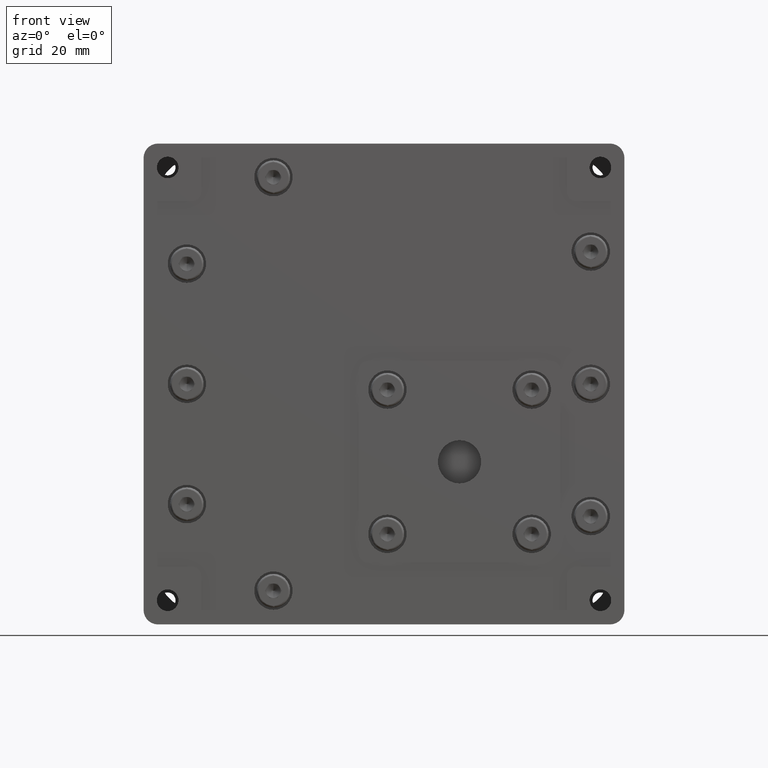
[diagram: clean part render]
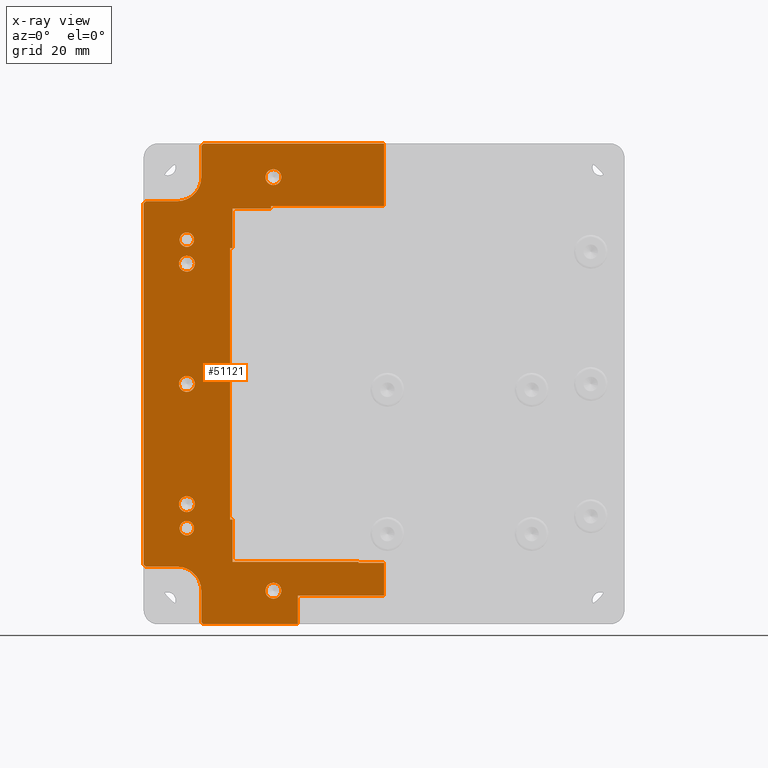
[diagram: x-ray — body ghosted, one internal face saturated and labeled with its STEP entity id]
A machine part, front view, then the same camera in x-ray: the body is ghosted and one INTERNAL B-rep face — a face not visible from any outside direction — is saturated and labeled: STEP entity #51121.
In plain terms, the highlighted planar face has unit normal (0, -1, 0).
Its self-contained STEP definition (entity closure, byte-faithful):
#49 = EDGE_CURVE ( 'NONE', #21239, #33619, #53898, .T. ) ;
#73 = EDGE_LOOP ( 'NONE', ( #17955, #6356 ) ) ;
#166 = DIRECTION ( 'NONE',  ( -1.000000000000000000, -0.000000000000000000, -0.000000000000000000 ) ) ;
#320 = CIRCLE ( 'NONE', #42594, 1.649999999999991696 ) ;
#554 = VERTEX_POINT ( 'NONE', #4205 ) ;
#705 = DIRECTION ( 'NONE',  ( -0.000000000000000000, 0.000000000000000000, 1.000000000000000000 ) ) ;
#858 = EDGE_LOOP ( 'NONE', ( #2636, #24536 ) ) ;
#1045 = ORIENTED_EDGE ( 'NONE', *, *, #24975, .T. ) ;
#1142 = CARTESIAN_POINT ( 'NONE',  ( -43.00000000000000000, 10.00000000000000000, -43.00000000000000000 ) ) ;
#1216 = DIRECTION ( 'NONE',  ( -1.000000000000000000, -0.000000000000000000, -0.000000000000000000 ) ) ;
#1259 = EDGE_LOOP ( 'NONE', ( #39617, #28963 ) ) ;
#1309 = DIRECTION ( 'NONE',  ( 0.000000000000000000, 0.000000000000000000, -1.000000000000000000 ) ) ;
#1722 = DIRECTION ( 'NONE',  ( 0.000000000000000000, 0.000000000000000000, -1.000000000000000000 ) ) ;
#2206 = EDGE_CURVE ( 'NONE', #12113, #55287, #23695, .T. ) ;
#2220 = ORIENTED_EDGE ( 'NONE', *, *, #52554, .T. ) ;
#2488 = ORIENTED_EDGE ( 'NONE', *, *, #20885, .T. ) ;
#2501 = CIRCLE ( 'NONE', #32817, 1.649999999999991696 ) ;
#2600 = LINE ( 'NONE', #20153, #35484 ) ;
#2636 = ORIENTED_EDGE ( 'NONE', *, *, #31920, .T. ) ;
#2739 = CARTESIAN_POINT ( 'NONE',  ( -38.00000000000000000, 10.00000000000000000, 42.99999999999995026 ) ) ;
#2766 = VECTOR ( 'NONE', #1216, 1000.000000000000000 ) ;
#2796 = DIRECTION ( 'NONE',  ( 0.000000000000000000, 1.000000000000000000, 0.000000000000000000 ) ) ;
#3037 = EDGE_LOOP ( 'NONE', ( #41050, #16213 ) ) ;
#3040 = VERTEX_POINT ( 'NONE', #21713 ) ;
#3601 = VERTEX_POINT ( 'NONE', #6350 ) ;
#3881 = LINE ( 'NONE', #4732, #10511 ) ;
#3997 = VECTOR ( 'NONE', #35866, 1000.000000000000114 ) ;
#4006 = ORIENTED_EDGE ( 'NONE', *, *, #18247, .T. ) ;
#4205 = CARTESIAN_POINT ( 'NONE',  ( -41.00000000000000000, 9.999999999999998224, 1.649999999999995248 ) ) ;
#4732 = CARTESIAN_POINT ( 'NONE',  ( -17.89999999999999503, 10.00000000000000000, 0.000000000000000000 ) ) ;
#4810 = CIRCLE ( 'NONE', #39757, 1.499999999999987566 ) ;
#5206 = LINE ( 'NONE', #22778, #47374 ) ;
#5279 = VECTOR ( 'NONE', #54491, 1000.000000000000000 ) ;
#5490 = DIRECTION ( 'NONE',  ( 0.000000000000000000, 0.000000000000000000, -1.000000000000000000 ) ) ;
#5609 = VERTEX_POINT ( 'NONE', #51575 ) ;
#5724 = VECTOR ( 'NONE', #16150, 1000.000000000000000 ) ;
#5751 = DIRECTION ( 'NONE',  ( 0.7071067811865474617, 0.000000000000000000, -0.7071067811865474617 ) ) ;
#5968 = CARTESIAN_POINT ( 'NONE',  ( -50.00000000000000711, 10.00000000000001243, -37.49999999999999289 ) ) ;
#6135 = CARTESIAN_POINT ( 'NONE',  ( -31.50000000000000000, 10.00000000000000888, -28.20000000000003482 ) ) ;
#6235 = VERTEX_POINT ( 'NONE', #29235 ) ;
#6247 = CARTESIAN_POINT ( 'NONE',  ( -37.50000000000000711, 9.999999999999960920, -49.99999999999999289 ) ) ;
#6350 = CARTESIAN_POINT ( 'NONE',  ( 3.042100328972845722E-15, 10.00000000000000178, 37.00000000000006395 ) ) ;
#6356 = ORIENTED_EDGE ( 'NONE', *, *, #34882, .T. ) ;
#6399 = ORIENTED_EDGE ( 'NONE', *, *, #2206, .T. ) ;
#6613 = LINE ( 'NONE', #41145, #32403 ) ;
#6636 = CARTESIAN_POINT ( 'NONE',  ( -22.99999999999999645, 9.999999999999998224, -42.99999999999999289 ) ) ;
#6665 = VECTOR ( 'NONE', #11120, 1000.000000000000000 ) ;
#6797 = CARTESIAN_POINT ( 'NONE',  ( -41.00000000000000711, 9.999999999999998224, 31.49999999999998579 ) ) ;
#7194 = CARTESIAN_POINT ( 'NONE',  ( -41.00000000000000000, 9.999999999999998224, -25.00000000000000000 ) ) ;
#7243 = LINE ( 'NONE', #50126, #5724 ) ;
#7315 = CARTESIAN_POINT ( 'NONE',  ( -43.00000000000000000, 10.00000000000000000, 42.99999999999995026 ) ) ;
#7468 = CARTESIAN_POINT ( 'NONE',  ( -23.00000000000000711, 9.999999999999998224, 44.64999999999998437 ) ) ;
#8064 = DIRECTION ( 'NONE',  ( -0.000000000000000000, 0.000000000000000000, 1.000000000000000000 ) ) ;
#8328 = CARTESIAN_POINT ( 'NONE',  ( -41.00000000000000711, 9.999999999999998224, 23.35000000000000142 ) ) ;
#8623 = DIRECTION ( 'NONE',  ( 1.000000000000000000, 0.000000000000000000, 0.000000000000000000 ) ) ;
#8667 = CARTESIAN_POINT ( 'NONE',  ( -37.49999999999993605, 10.00000000000001243, 50.00000000000001421 ) ) ;
#8784 = ORIENTED_EDGE ( 'NONE', *, *, #33397, .T. ) ;
#8894 = DIRECTION ( 'NONE',  ( 1.000000000000000000, 0.000000000000000000, 0.000000000000000000 ) ) ;
#9609 = CIRCLE ( 'NONE', #48158, 1.499999999999987566 ) ;
#9677 = CARTESIAN_POINT ( 'NONE',  ( -5.299999999999969624, 9.999999999999984013, -37.00000000000000711 ) ) ;
#9836 = DIRECTION ( 'NONE',  ( 0.000000000000000000, 1.000000000000000000, 0.000000000000000000 ) ) ;
#9892 = DIRECTION ( 'NONE',  ( 0.000000000000000000, 0.000000000000000000, -1.000000000000000000 ) ) ;
#9941 = AXIS2_PLACEMENT_3D ( 'NONE', #46257, #27858, #45977 ) ;
#10343 = CARTESIAN_POINT ( 'NONE',  ( -22.99999999999999645, 9.999999999999998224, -41.34999999999999432 ) ) ;
#10450 = DIRECTION ( 'NONE',  ( 1.000000000000000000, 0.000000000000000000, -0.000000000000000000 ) ) ;
#10511 = VECTOR ( 'NONE', #705, 1000.000000000000000 ) ;
#10533 = AXIS2_PLACEMENT_3D ( 'NONE', #1142, #14406, #1722 ) ;
#10567 = EDGE_CURVE ( 'NONE', #3040, #45601, #41788, .T. ) ;
#10631 = EDGE_CURVE ( 'NONE', #14303, #15163, #45253, .T. ) ;
#10668 = DIRECTION ( 'NONE',  ( 0.000000000000000000, -0.000000000000000000, -1.000000000000000000 ) ) ;
#10884 = CARTESIAN_POINT ( 'NONE',  ( -43.00000000000000000, 10.00000000000000000, -38.00000000000000000 ) ) ;
#10931 = CIRCLE ( 'NONE', #39377, 1.649999999999991696 ) ;
#11120 = DIRECTION ( 'NONE',  ( -1.000000000000000000, -0.000000000000000000, -0.000000000000000000 ) ) ;
#11269 = CARTESIAN_POINT ( 'NONE',  ( -22.99999999999999645, 9.999999999999998224, -42.99999999999999289 ) ) ;
#11453 = DIRECTION ( 'NONE',  ( 0.000000000000000000, 0.000000000000000000, -1.000000000000000000 ) ) ;
#11539 = CARTESIAN_POINT ( 'NONE',  ( -38.00000000000000711, 10.00000000000000000, -43.00000000000000000 ) ) ;
#11558 = VERTEX_POINT ( 'NONE', #15049 ) ;
#11966 = ORIENTED_EDGE ( 'NONE', *, *, #36240, .T. ) ;
#12113 = VERTEX_POINT ( 'NONE', #31685 ) ;
#12252 = EDGE_CURVE ( 'NONE', #45601, #51182, #2600, .T. ) ;
#12577 = AXIS2_PLACEMENT_3D ( 'NONE', #48361, #26786, #22762 ) ;
#12584 = VECTOR ( 'NONE', #10450, 1000.000000000000000 ) ;
#12653 = VECTOR ( 'NONE', #8894, 1000.000000000000000 ) ;
#12725 = LINE ( 'NONE', #30264, #21729 ) ;
#12880 = DIRECTION ( 'NONE',  ( 1.000000000000000000, 0.000000000000000000, 0.000000000000000000 ) ) ;
#13023 = ORIENTED_EDGE ( 'NONE', *, *, #12252, .T. ) ;
#13207 = ORIENTED_EDGE ( 'NONE', *, *, #45626, .T. ) ;
#13550 = EDGE_CURVE ( 'NONE', #51182, #50878, #40152, .T. ) ;
#13576 = CARTESIAN_POINT ( 'NONE',  ( -5.299999999999969624, 9.999999999999989342, -37.19999999999998153 ) ) ;
#13638 = DIRECTION ( 'NONE',  ( 0.000000000000000000, 1.000000000000000000, 0.000000000000000000 ) ) ;
#13674 = EDGE_LOOP ( 'NONE', ( #15527, #18881 ) ) ;
#13726 = DIRECTION ( 'NONE',  ( 0.000000000000000000, -0.000000000000000000, -1.000000000000000000 ) ) ;
#14005 = LINE ( 'NONE', #49109, #6665 ) ;
#14303 = VERTEX_POINT ( 'NONE', #35961 ) ;
#14406 = DIRECTION ( 'NONE',  ( -0.000000000000000000, 1.000000000000000000, -0.000000000000000000 ) ) ;
#15049 = CARTESIAN_POINT ( 'NONE',  ( -22.99999999999999645, 9.999999999999998224, -44.64999999999998437 ) ) ;
#15163 = VERTEX_POINT ( 'NONE', #19071 ) ;
#15527 = ORIENTED_EDGE ( 'NONE', *, *, #15749, .T. ) ;
#15579 = ORIENTED_EDGE ( 'NONE', *, *, #27602, .T. ) ;
#15747 = DIRECTION ( 'NONE',  ( 0.000000000000000000, 1.000000000000000000, 0.000000000000000000 ) ) ;
#15749 = EDGE_CURVE ( 'NONE', #50383, #45490, #320, .T. ) ;
#15771 = FACE_BOUND ( 'NONE', #3037, .T. ) ;
#15782 = ORIENTED_EDGE ( 'NONE', *, *, #56632, .T. ) ;
#15959 = CARTESIAN_POINT ( 'NONE',  ( -43.00000000000000000, 10.00000000000000000, 37.99999999999995026 ) ) ;
#15987 = ORIENTED_EDGE ( 'NONE', *, *, #36202, .T. ) ;
#16101 = CARTESIAN_POINT ( 'NONE',  ( -31.50000000000000000, 10.00000000000000000, 0.000000000000000000 ) ) ;
#16150 = DIRECTION ( 'NONE',  ( -0.000000000000000000, 0.000000000000000000, 1.000000000000000000 ) ) ;
#16213 = ORIENTED_EDGE ( 'NONE', *, *, #38529, .T. ) ;
#16483 = ORIENTED_EDGE ( 'NONE', *, *, #33609, .T. ) ;
#16591 = DIRECTION ( 'NONE',  ( 0.000000000000000000, 0.000000000000000000, -1.000000000000000000 ) ) ;
#16780 = DIRECTION ( 'NONE',  ( 1.000000000000000000, 0.000000000000000000, 0.000000000000000000 ) ) ;
#17052 = CARTESIAN_POINT ( 'NONE',  ( -50.00000000000000711, 9.999999999999960920, 37.49999999999993605 ) ) ;
#17068 = EDGE_CURVE ( 'NONE', #44647, #27681, #33489, .T. ) ;
#17200 = FACE_BOUND ( 'NONE', #1259, .T. ) ;
#17478 = CARTESIAN_POINT ( 'NONE',  ( -41.00000000000000711, 9.999999999999998224, 30.00000000000000000 ) ) ;
#17760 = DIRECTION ( 'NONE',  ( 0.000000000000000000, 0.000000000000000000, -1.000000000000000000 ) ) ;
#17788 = LINE ( 'NONE', #21855, #12653 ) ;
#17952 = CARTESIAN_POINT ( 'NONE',  ( 0.000000000000000000, 10.00000000000000000, 37.99999999999995026 ) ) ;
#17955 = ORIENTED_EDGE ( 'NONE', *, *, #26622, .T. ) ;
#18247 = EDGE_CURVE ( 'NONE', #29330, #40243, #5206, .T. ) ;
#18248 = LINE ( 'NONE', #17952, #22828 ) ;
#18524 = VECTOR ( 'NONE', #47370, 1000.000000000000000 ) ;
#18881 = ORIENTED_EDGE ( 'NONE', *, *, #29573, .T. ) ;
#18909 = CIRCLE ( 'NONE', #40021, 1.649999999999995248 ) ;
#18947 = CARTESIAN_POINT ( 'NONE',  ( -31.50000000000000000, 9.999999999999985789, -37.00000000000002132 ) ) ;
#18954 = ORIENTED_EDGE ( 'NONE', *, *, #25014, .T. ) ;
#18965 = ORIENTED_EDGE ( 'NONE', *, *, #13550, .T. ) ;
#19071 = CARTESIAN_POINT ( 'NONE',  ( -32.00000000000000000, 10.00000000000000711, -28.20000000000003837 ) ) ;
#20153 = CARTESIAN_POINT ( 'NONE',  ( -31.49999999999999289, 10.00000000000000000, 0.000000000000000000 ) ) ;
#20156 = EDGE_CURVE ( 'NONE', #42488, #21232, #39963, .T. ) ;
#20423 = LINE ( 'NONE', #16101, #27151 ) ;
#20549 = CARTESIAN_POINT ( 'NONE',  ( -38.00000000000000711, 10.00000000000000000, 0.000000000000000000 ) ) ;
#20550 = DIRECTION ( 'NONE',  ( -0.000000000000000000, 1.000000000000000000, -0.000000000000000000 ) ) ;
#20813 = AXIS2_PLACEMENT_3D ( 'NONE', #35025, #47962, #13726 ) ;
#20885 = EDGE_CURVE ( 'NONE', #21232, #26019, #3881, .T. ) ;
#21232 = VERTEX_POINT ( 'NONE', #48686 ) ;
#21239 = VERTEX_POINT ( 'NONE', #17052 ) ;
#21352 = CIRCLE ( 'NONE', #55373, 1.649999999999991696 ) ;
#21586 = EDGE_CURVE ( 'NONE', #47763, #38573, #22506, .T. ) ;
#21713 = CARTESIAN_POINT ( 'NONE',  ( -32.00000000000000000, 10.00000000000000711, 28.20000000000003126 ) ) ;
#21729 = VECTOR ( 'NONE', #21930, 1000.000000000000000 ) ;
#21855 = CARTESIAN_POINT ( 'NONE',  ( 0.000000000000000000, 10.00000000000000000, -37.99999999999999289 ) ) ;
#21910 = CARTESIAN_POINT ( 'NONE',  ( -23.50000000000000000, 10.00000000000000178, 36.50000000000004263 ) ) ;
#21930 = DIRECTION ( 'NONE',  ( -0.000000000000000000, 0.000000000000000000, 1.000000000000000000 ) ) ;
#21983 = EDGE_LOOP ( 'NONE', ( #4006, #26642, #52106, #44066, #23171, #27488, #8784, #40626, #37356, #51114, #36291, #2488, #33256, #18954, #6399, #11966, #15987, #13207, #56890, #2220, #27862, #13023, #18965, #53855, #52280, #29104, #42979, #15579 ) ) ;
#22095 = DIRECTION ( 'NONE',  ( 0.000000000000000000, 1.000000000000000000, 0.000000000000000000 ) ) ;
#22373 = PLANE ( 'NONE',  #20813 ) ;
#22506 = CIRCLE ( 'NONE', #42699, 1.499999999999987566 ) ;
#22620 = DIRECTION ( 'NONE',  ( 1.000000000000000000, 0.000000000000000000, 0.000000000000000000 ) ) ;
#22762 = DIRECTION ( 'NONE',  ( 0.000000000000000000, 0.000000000000000000, -1.000000000000000000 ) ) ;
#22778 = CARTESIAN_POINT ( 'NONE',  ( -37.99999999999999289, 10.00000000000000000, 0.000000000000000000 ) ) ;
#22828 = VECTOR ( 'NONE', #49321, 1000.000000000000000 ) ;
#23171 = ORIENTED_EDGE ( 'NONE', *, *, #49, .T. ) ;
#23193 = DIRECTION ( 'NONE',  ( 0.000000000000000000, 0.000000000000000000, 1.000000000000000000 ) ) ;
#23257 = CARTESIAN_POINT ( 'NONE',  ( -41.00000000000000711, 9.999999999999998224, 28.50000000000001066 ) ) ;
#23695 = LINE ( 'NONE', #41217, #2766 ) ;
#23747 = AXIS2_PLACEMENT_3D ( 'NONE', #55193, #15747, #33311 ) ;
#24079 = DIRECTION ( 'NONE',  ( 0.000000000000000000, 0.000000000000000000, -1.000000000000000000 ) ) ;
#24222 = CARTESIAN_POINT ( 'NONE',  ( -41.00000000000000711, 9.999999999999998224, 26.64999999999999147 ) ) ;
#24431 = FACE_BOUND ( 'NONE', #73, .T. ) ;
#24536 = ORIENTED_EDGE ( 'NONE', *, *, #21586, .T. ) ;
#24546 = VECTOR ( 'NONE', #41498, 1000.000000000000000 ) ;
#24750 = DIRECTION ( 'NONE',  ( 0.000000000000000000, 0.000000000000000000, -1.000000000000000000 ) ) ;
#24755 = EDGE_CURVE ( 'NONE', #26019, #40814, #30307, .T. ) ;
#24864 = ORIENTED_EDGE ( 'NONE', *, *, #37684, .T. ) ;
#24975 = EDGE_CURVE ( 'NONE', #48400, #11558, #21352, .T. ) ;
#25014 = EDGE_CURVE ( 'NONE', #40814, #12113, #7243, .T. ) ;
#25078 = CARTESIAN_POINT ( 'NONE',  ( -49.50000000000000711, 10.00000000000001421, -37.99999999999999289 ) ) ;
#25104 = EDGE_CURVE ( 'NONE', #33619, #28195, #34840, .T. ) ;
#25532 = CARTESIAN_POINT ( 'NONE',  ( -23.50000000000000000, 10.00000000000000000, 36.50000000000004974 ) ) ;
#25931 = DIRECTION ( 'NONE',  ( 0.7071067811865474617, 0.000000000000000000, -0.7071067811865474617 ) ) ;
#26019 = VERTEX_POINT ( 'NONE', #38019 ) ;
#26224 = CARTESIAN_POINT ( 'NONE',  ( -49.49999999999998579, 9.999999999999975131, 37.99999999999995026 ) ) ;
#26423 = LINE ( 'NONE', #52308, #52984 ) ;
#26556 = EDGE_CURVE ( 'NONE', #31884, #21239, #49110, .T. ) ;
#26622 = EDGE_CURVE ( 'NONE', #33936, #31719, #37060, .T. ) ;
#26642 = ORIENTED_EDGE ( 'NONE', *, *, #31324, .T. ) ;
#26786 = DIRECTION ( 'NONE',  ( 0.000000000000000000, 1.000000000000000000, 0.000000000000000000 ) ) ;
#27151 = VECTOR ( 'NONE', #51228, 1000.000000000000000 ) ;
#27488 = ORIENTED_EDGE ( 'NONE', *, *, #25104, .T. ) ;
#27602 = EDGE_CURVE ( 'NONE', #45214, #29330, #49252, .T. ) ;
#27681 = VERTEX_POINT ( 'NONE', #11539 ) ;
#27858 = DIRECTION ( 'NONE',  ( 0.000000000000000000, 1.000000000000000000, 0.000000000000000000 ) ) ;
#27862 = ORIENTED_EDGE ( 'NONE', *, *, #10567, .T. ) ;
#28195 = VERTEX_POINT ( 'NONE', #38497 ) ;
#28218 = DIRECTION ( 'NONE',  ( 0.000000000000000000, 1.000000000000000000, 0.000000000000000000 ) ) ;
#28824 = VERTEX_POINT ( 'NONE', #35249 ) ;
#28963 = ORIENTED_EDGE ( 'NONE', *, *, #47157, .T. ) ;
#28994 = CARTESIAN_POINT ( 'NONE',  ( -41.00000000000000711, 9.999999999999998224, -30.00000000000000000 ) ) ;
#29043 = CARTESIAN_POINT ( 'NONE',  ( -37.99999999999999289, 10.00000000000000355, 49.49999999999995026 ) ) ;
#29104 = ORIENTED_EDGE ( 'NONE', *, *, #55289, .T. ) ;
#29235 = CARTESIAN_POINT ( 'NONE',  ( -41.00000000000000000, 9.999999999999998224, -1.649999999999995248 ) ) ;
#29330 = VERTEX_POINT ( 'NONE', #29043 ) ;
#29515 = CARTESIAN_POINT ( 'NONE',  ( -41.00000000000000000, 9.999999999999998224, -25.00000000000000000 ) ) ;
#29573 = EDGE_CURVE ( 'NONE', #45490, #50383, #10931, .T. ) ;
#30101 = AXIS2_PLACEMENT_3D ( 'NONE', #45251, #13638, #9892 ) ;
#30128 = EDGE_CURVE ( 'NONE', #27681, #34709, #30314, .T. ) ;
#30205 = CARTESIAN_POINT ( 'NONE',  ( -23.50000000000000000, 9.999999999999998224, 37.00000000000007105 ) ) ;
#30263 = VECTOR ( 'NONE', #42408, 1000.000000000000000 ) ;
#30264 = CARTESIAN_POINT ( 'NONE',  ( 1.764585476537641534E-15, 10.00000000000000000, 0.000000000000000000 ) ) ;
#30302 = CARTESIAN_POINT ( 'NONE',  ( -41.00000000000000000, 9.999999999999998224, -26.64999999999999503 ) ) ;
#30307 = LINE ( 'NONE', #47841, #54421 ) ;
#30314 = LINE ( 'NONE', #20549, #30263 ) ;
#30552 = VERTEX_POINT ( 'NONE', #24222 ) ;
#30666 = AXIS2_PLACEMENT_3D ( 'NONE', #29515, #55733, #24079 ) ;
#30714 = FACE_OUTER_BOUND ( 'NONE', #21983, .T. ) ;
#31324 = EDGE_CURVE ( 'NONE', #40243, #45124, #50242, .T. ) ;
#31685 = CARTESIAN_POINT ( 'NONE',  ( -1.221255881815124571E-15, 10.00000000000000178, -37.19999999999996732 ) ) ;
#31709 = CARTESIAN_POINT ( 'NONE',  ( 2.989021474475347874E-15, 10.00000000000000711, 50.00000000000000711 ) ) ;
#31719 = VERTEX_POINT ( 'NONE', #48060 ) ;
#31884 = VERTEX_POINT ( 'NONE', #26224 ) ;
#31920 = EDGE_CURVE ( 'NONE', #38573, #47763, #50285, .T. ) ;
#32403 = VECTOR ( 'NONE', #5751, 1000.000000000000114 ) ;
#32554 = DIRECTION ( 'NONE',  ( -0.7071067811865474617, 0.000000000000000000, -0.7071067811865474617 ) ) ;
#32817 = AXIS2_PLACEMENT_3D ( 'NONE', #6636, #9836, #5490 ) ;
#33250 = CARTESIAN_POINT ( 'NONE',  ( -41.00000000000000711, 9.999999999999998224, 24.99999999999999645 ) ) ;
#33256 = ORIENTED_EDGE ( 'NONE', *, *, #24755, .T. ) ;
#33311 = DIRECTION ( 'NONE',  ( 0.000000000000000000, 0.000000000000000000, -1.000000000000000000 ) ) ;
#33371 = CARTESIAN_POINT ( 'NONE',  ( -31.49999999999999289, 10.00000000000000711, 28.20000000000003126 ) ) ;
#33397 = EDGE_CURVE ( 'NONE', #28195, #44647, #17788, .T. ) ;
#33489 = CIRCLE ( 'NONE', #10533, 4.999999999999997335 ) ;
#33609 = EDGE_CURVE ( 'NONE', #554, #6235, #52212, .T. ) ;
#33619 = VERTEX_POINT ( 'NONE', #5968 ) ;
#33936 = VERTEX_POINT ( 'NONE', #30302 ) ;
#34215 = CIRCLE ( 'NONE', #39687, 1.649999999999995248 ) ;
#34709 = VERTEX_POINT ( 'NONE', #52210 ) ;
#34712 = VERTEX_POINT ( 'NONE', #56820 ) ;
#34751 = CIRCLE ( 'NONE', #9941, 1.649999999999995248 ) ;
#34775 = DIRECTION ( 'NONE',  ( 0.000000000000000000, 1.000000000000000000, 0.000000000000000000 ) ) ;
#34840 = LINE ( 'NONE', #25078, #42501 ) ;
#34882 = EDGE_CURVE ( 'NONE', #31719, #33936, #18909, .T. ) ;
#35025 = CARTESIAN_POINT ( 'NONE',  ( 0.000000000000000000, 10.00000000000000000, 0.000000000000000000 ) ) ;
#35249 = CARTESIAN_POINT ( 'NONE',  ( -41.00000000000000711, 9.999999999999998224, -28.50000000000001066 ) ) ;
#35288 = CARTESIAN_POINT ( 'NONE',  ( 0.000000000000000000, 10.00000000000000000, -37.00000000000001421 ) ) ;
#35320 = DIRECTION ( 'NONE',  ( 0.000000000000000000, 0.000000000000000000, -1.000000000000000000 ) ) ;
#35323 = CARTESIAN_POINT ( 'NONE',  ( -23.00000000000000711, 9.999999999999998224, 42.99999999999999289 ) ) ;
#35484 = VECTOR ( 'NONE', #8064, 1000.000000000000000 ) ;
#35866 = DIRECTION ( 'NONE',  ( -0.7071067811865474617, 0.000000000000000000, -0.7071067811865474617 ) ) ;
#35961 = CARTESIAN_POINT ( 'NONE',  ( -31.50000000000000000, 10.00000000000000000, -28.20000000000003482 ) ) ;
#36202 = EDGE_CURVE ( 'NONE', #5609, #54429, #45043, .T. ) ;
#36240 = EDGE_CURVE ( 'NONE', #55287, #5609, #53997, .T. ) ;
#36291 = ORIENTED_EDGE ( 'NONE', *, *, #20156, .T. ) ;
#37060 = CIRCLE ( 'NONE', #30666, 1.649999999999995248 ) ;
#37175 = CARTESIAN_POINT ( 'NONE',  ( -50.00000000000000711, 10.00000000000000000, 0.000000000000000000 ) ) ;
#37356 = ORIENTED_EDGE ( 'NONE', *, *, #30128, .T. ) ;
#37458 = DIRECTION ( 'NONE',  ( 0.000000000000000000, 1.000000000000000000, 0.000000000000000000 ) ) ;
#37636 = FACE_BOUND ( 'NONE', #43095, .T. ) ;
#37684 = EDGE_CURVE ( 'NONE', #6235, #554, #40189, .T. ) ;
#38019 = CARTESIAN_POINT ( 'NONE',  ( -17.89999999999999858, 10.00000000000000000, -43.99999999999999289 ) ) ;
#38081 = DIRECTION ( 'NONE',  ( 0.000000000000000000, 0.000000000000000000, -1.000000000000000000 ) ) ;
#38497 = CARTESIAN_POINT ( 'NONE',  ( -49.50000000000000711, 10.00000000000000355, -37.99999999999999289 ) ) ;
#38529 = EDGE_CURVE ( 'NONE', #30552, #39345, #34751, .T. ) ;
#38573 = VERTEX_POINT ( 'NONE', #23257 ) ;
#38961 = VECTOR ( 'NONE', #8623, 1000.000000000000000 ) ;
#39345 = VERTEX_POINT ( 'NONE', #8328 ) ;
#39377 = AXIS2_PLACEMENT_3D ( 'NONE', #35323, #34775, #43662 ) ;
#39400 = CARTESIAN_POINT ( 'NONE',  ( 0.000000000000000000, 10.00000000000000000, -49.99999999999999289 ) ) ;
#39617 = ORIENTED_EDGE ( 'NONE', *, *, #44773, .T. ) ;
#39623 = CARTESIAN_POINT ( 'NONE',  ( -23.00000000000000711, 9.999999999999998224, 42.99999999999999289 ) ) ;
#39687 = AXIS2_PLACEMENT_3D ( 'NONE', #33250, #40728, #1309 ) ;
#39757 = AXIS2_PLACEMENT_3D ( 'NONE', #56054, #2796, #11453 ) ;
#39963 = LINE ( 'NONE', #39400, #38961 ) ;
#40021 = AXIS2_PLACEMENT_3D ( 'NONE', #7194, #28218, #24750 ) ;
#40092 = EDGE_CURVE ( 'NONE', #39345, #30552, #34215, .T. ) ;
#40152 = LINE ( 'NONE', #44456, #53942 ) ;
#40189 = CIRCLE ( 'NONE', #30101, 1.649999999999995248 ) ;
#40243 = VERTEX_POINT ( 'NONE', #2739 ) ;
#40626 = ORIENTED_EDGE ( 'NONE', *, *, #17068, .T. ) ;
#40658 = CARTESIAN_POINT ( 'NONE',  ( -32.00000000000000000, 10.00000000000000000, 0.000000000000000000 ) ) ;
#40663 = EDGE_CURVE ( 'NONE', #34709, #42488, #6613, .T. ) ;
#40728 = DIRECTION ( 'NONE',  ( 0.000000000000000000, 1.000000000000000000, 0.000000000000000000 ) ) ;
#40814 = VERTEX_POINT ( 'NONE', #49165 ) ;
#40990 = CARTESIAN_POINT ( 'NONE',  ( -23.00000000000000711, 9.999999999999998224, 41.34999999999999432 ) ) ;
#41050 = ORIENTED_EDGE ( 'NONE', *, *, #40092, .T. ) ;
#41145 = CARTESIAN_POINT ( 'NONE',  ( -37.50000000000000711, 9.999999999999925393, -49.99999999999999289 ) ) ;
#41212 = DIRECTION ( 'NONE',  ( 0.000000000000000000, -0.000000000000000000, -1.000000000000000000 ) ) ;
#41217 = CARTESIAN_POINT ( 'NONE',  ( 0.000000000000000000, 10.00000000000000000, -37.19999999999996732 ) ) ;
#41498 = DIRECTION ( 'NONE',  ( -1.000000000000000000, 0.000000000000000000, -6.938893903907222856E-15 ) ) ;
#41788 = LINE ( 'NONE', #49573, #12584 ) ;
#41932 = AXIS2_PLACEMENT_3D ( 'NONE', #7315, #20550, #38081 ) ;
#41975 = VERTEX_POINT ( 'NONE', #31709 ) ;
#42408 = DIRECTION ( 'NONE',  ( 0.000000000000000000, -0.000000000000000000, -1.000000000000000000 ) ) ;
#42488 = VERTEX_POINT ( 'NONE', #6247 ) ;
#42501 = VECTOR ( 'NONE', #25931, 1000.000000000000114 ) ;
#42594 = AXIS2_PLACEMENT_3D ( 'NONE', #39623, #53731, #35320 ) ;
#42699 = AXIS2_PLACEMENT_3D ( 'NONE', #17478, #22095, #17760 ) ;
#42979 = ORIENTED_EDGE ( 'NONE', *, *, #47680, .T. ) ;
#43095 = EDGE_LOOP ( 'NONE', ( #24864, #16483 ) ) ;
#43662 = DIRECTION ( 'NONE',  ( 0.000000000000000000, 0.000000000000000000, -1.000000000000000000 ) ) ;
#44004 = VECTOR ( 'NONE', #41212, 1000.000000000000000 ) ;
#44066 = ORIENTED_EDGE ( 'NONE', *, *, #26556, .T. ) ;
#44210 = FACE_BOUND ( 'NONE', #858, .T. ) ;
#44456 = CARTESIAN_POINT ( 'NONE',  ( 0.000000000000000000, 10.00000000000000000, 36.50000000000004263 ) ) ;
#44647 = VERTEX_POINT ( 'NONE', #10884 ) ;
#44773 = EDGE_CURVE ( 'NONE', #34712, #28824, #9609, .T. ) ;
#44980 = LINE ( 'NONE', #40658, #5279 ) ;
#45043 = LINE ( 'NONE', #35288, #46533 ) ;
#45124 = VERTEX_POINT ( 'NONE', #15959 ) ;
#45214 = VERTEX_POINT ( 'NONE', #8667 ) ;
#45251 = CARTESIAN_POINT ( 'NONE',  ( -41.00000000000000000, 9.999999999999998224, 0.000000000000000000 ) ) ;
#45253 = LINE ( 'NONE', #6135, #24546 ) ;
#45490 = VERTEX_POINT ( 'NONE', #7468 ) ;
#45601 = VERTEX_POINT ( 'NONE', #33371 ) ;
#45626 = EDGE_CURVE ( 'NONE', #54429, #14303, #20423, .T. ) ;
#45977 = DIRECTION ( 'NONE',  ( 0.000000000000000000, 0.000000000000000000, -1.000000000000000000 ) ) ;
#46257 = CARTESIAN_POINT ( 'NONE',  ( -41.00000000000000711, 9.999999999999998224, 24.99999999999999645 ) ) ;
#46281 = FACE_BOUND ( 'NONE', #49044, .T. ) ;
#46369 = DIRECTION ( 'NONE',  ( 0.000000000000000000, 0.000000000000000000, -1.000000000000000000 ) ) ;
#46533 = VECTOR ( 'NONE', #166, 1000.000000000000000 ) ;
#47157 = EDGE_CURVE ( 'NONE', #28824, #34712, #4810, .T. ) ;
#47370 = DIRECTION ( 'NONE',  ( 0.000000000000000000, 0.000000000000000000, 1.000000000000000000 ) ) ;
#47374 = VECTOR ( 'NONE', #10668, 1000.000000000000000 ) ;
#47680 = EDGE_CURVE ( 'NONE', #41975, #45214, #14005, .T. ) ;
#47763 = VERTEX_POINT ( 'NONE', #6797 ) ;
#47789 = VECTOR ( 'NONE', #32554, 1000.000000000000114 ) ;
#47841 = CARTESIAN_POINT ( 'NONE',  ( 0.000000000000000000, 10.00000000000000000, -43.99999999999999289 ) ) ;
#47962 = DIRECTION ( 'NONE',  ( 0.000000000000000000, -1.000000000000000000, 0.000000000000000000 ) ) ;
#48060 = CARTESIAN_POINT ( 'NONE',  ( -41.00000000000000000, 9.999999999999998224, -23.35000000000000497 ) ) ;
#48158 = AXIS2_PLACEMENT_3D ( 'NONE', #28994, #50860, #16591 ) ;
#48361 = CARTESIAN_POINT ( 'NONE',  ( -41.00000000000000711, 9.999999999999998224, 30.00000000000000000 ) ) ;
#48400 = VERTEX_POINT ( 'NONE', #10343 ) ;
#48686 = CARTESIAN_POINT ( 'NONE',  ( -17.89999999999999503, 9.999999999999994671, -49.99999999999998579 ) ) ;
#49044 = EDGE_LOOP ( 'NONE', ( #15782, #1045 ) ) ;
#49109 = CARTESIAN_POINT ( 'NONE',  ( 0.000000000000000000, 10.00000000000000000, 50.00000000000000711 ) ) ;
#49110 = LINE ( 'NONE', #53718, #3997 ) ;
#49165 = CARTESIAN_POINT ( 'NONE',  ( 4.848013854903166298E-15, 10.00000000000000178, -43.99999999999999289 ) ) ;
#49252 = LINE ( 'NONE', #53857, #47789 ) ;
#49321 = DIRECTION ( 'NONE',  ( -1.000000000000000000, -0.000000000000000000, -0.000000000000000000 ) ) ;
#49573 = CARTESIAN_POINT ( 'NONE',  ( -31.99999999999999289, 10.00000000000000888, 28.20000000000003126 ) ) ;
#50043 = EDGE_CURVE ( 'NONE', #50878, #53188, #50052, .T. ) ;
#50052 = LINE ( 'NONE', #25532, #18524 ) ;
#50126 = CARTESIAN_POINT ( 'NONE',  ( 8.532053748010493175E-15, 10.00000000000000000, 0.000000000000000000 ) ) ;
#50242 = CIRCLE ( 'NONE', #41932, 4.999999999999997335 ) ;
#50285 = CIRCLE ( 'NONE', #12577, 1.499999999999987566 ) ;
#50383 = VERTEX_POINT ( 'NONE', #40990 ) ;
#50860 = DIRECTION ( 'NONE',  ( 0.000000000000000000, 1.000000000000000000, 0.000000000000000000 ) ) ;
#50878 = VERTEX_POINT ( 'NONE', #21910 ) ;
#51114 = ORIENTED_EDGE ( 'NONE', *, *, #40663, .T. ) ;
#51121 = ADVANCED_FACE ( 'NONE', ( #46281, #24431, #37636, #15771, #53163, #44210, #17200, #30714 ), #22373, .T. ) ;
#51132 = VECTOR ( 'NONE', #23193, 1000.000000000000000 ) ;
#51182 = VERTEX_POINT ( 'NONE', #52873 ) ;
#51203 = EDGE_CURVE ( 'NONE', #53188, #3601, #26423, .T. ) ;
#51228 = DIRECTION ( 'NONE',  ( -0.000000000000000000, 0.000000000000000000, 1.000000000000000000 ) ) ;
#51575 = CARTESIAN_POINT ( 'NONE',  ( -5.299999999999969624, 9.999999999999987566, -37.00000000000002132 ) ) ;
#52106 = ORIENTED_EDGE ( 'NONE', *, *, #53594, .T. ) ;
#52210 = CARTESIAN_POINT ( 'NONE',  ( -38.00000000000000711, 9.999999999999975131, -49.49999999999999289 ) ) ;
#52212 = CIRCLE ( 'NONE', #23747, 1.649999999999995248 ) ;
#52280 = ORIENTED_EDGE ( 'NONE', *, *, #51203, .T. ) ;
#52308 = CARTESIAN_POINT ( 'NONE',  ( 0.000000000000000000, 10.00000000000000000, 37.00000000000007105 ) ) ;
#52554 = EDGE_CURVE ( 'NONE', #15163, #3040, #44980, .T. ) ;
#52873 = CARTESIAN_POINT ( 'NONE',  ( -31.49999999999999289, 10.00000000000000711, 36.50000000000004263 ) ) ;
#52984 = VECTOR ( 'NONE', #12880, 1000.000000000000000 ) ;
#53163 = FACE_BOUND ( 'NONE', #13674, .T. ) ;
#53188 = VERTEX_POINT ( 'NONE', #30205 ) ;
#53594 = EDGE_CURVE ( 'NONE', #45124, #31884, #18248, .T. ) ;
#53718 = CARTESIAN_POINT ( 'NONE',  ( -50.00000000000000711, 9.999999999999925393, 37.49999999999993605 ) ) ;
#53731 = DIRECTION ( 'NONE',  ( 0.000000000000000000, 1.000000000000000000, 0.000000000000000000 ) ) ;
#53855 = ORIENTED_EDGE ( 'NONE', *, *, #50043, .T. ) ;
#53857 = CARTESIAN_POINT ( 'NONE',  ( -37.99999999999999289, 10.00000000000001421, 49.49999999999995026 ) ) ;
#53898 = LINE ( 'NONE', #37175, #44004 ) ;
#53942 = VECTOR ( 'NONE', #22620, 1000.000000000000000 ) ;
#53997 = LINE ( 'NONE', #9677, #51132 ) ;
#54421 = VECTOR ( 'NONE', #16780, 1000.000000000000000 ) ;
#54429 = VERTEX_POINT ( 'NONE', #18947 ) ;
#54491 = DIRECTION ( 'NONE',  ( -0.000000000000000000, 0.000000000000000000, 1.000000000000000000 ) ) ;
#55193 = CARTESIAN_POINT ( 'NONE',  ( -41.00000000000000000, 9.999999999999998224, 0.000000000000000000 ) ) ;
#55287 = VERTEX_POINT ( 'NONE', #13576 ) ;
#55289 = EDGE_CURVE ( 'NONE', #3601, #41975, #12725, .T. ) ;
#55373 = AXIS2_PLACEMENT_3D ( 'NONE', #11269, #37458, #46369 ) ;
#55733 = DIRECTION ( 'NONE',  ( 0.000000000000000000, 1.000000000000000000, 0.000000000000000000 ) ) ;
#56054 = CARTESIAN_POINT ( 'NONE',  ( -41.00000000000000711, 9.999999999999998224, -30.00000000000000000 ) ) ;
#56632 = EDGE_CURVE ( 'NONE', #11558, #48400, #2501, .T. ) ;
#56820 = CARTESIAN_POINT ( 'NONE',  ( -41.00000000000000711, 9.999999999999998224, -31.49999999999998579 ) ) ;
#56890 = ORIENTED_EDGE ( 'NONE', *, *, #10631, .T. ) ;